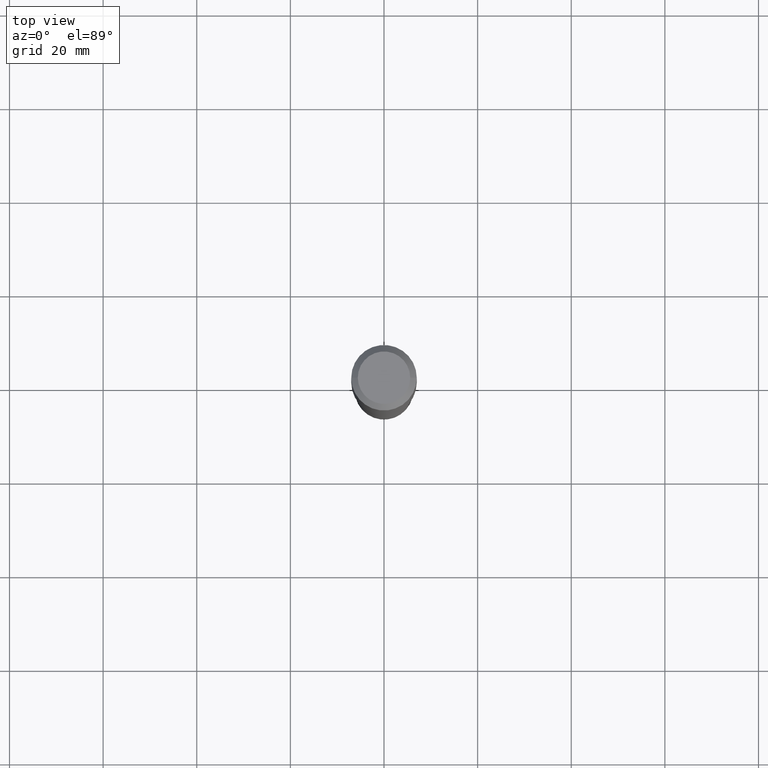
[diagram: clean part render]
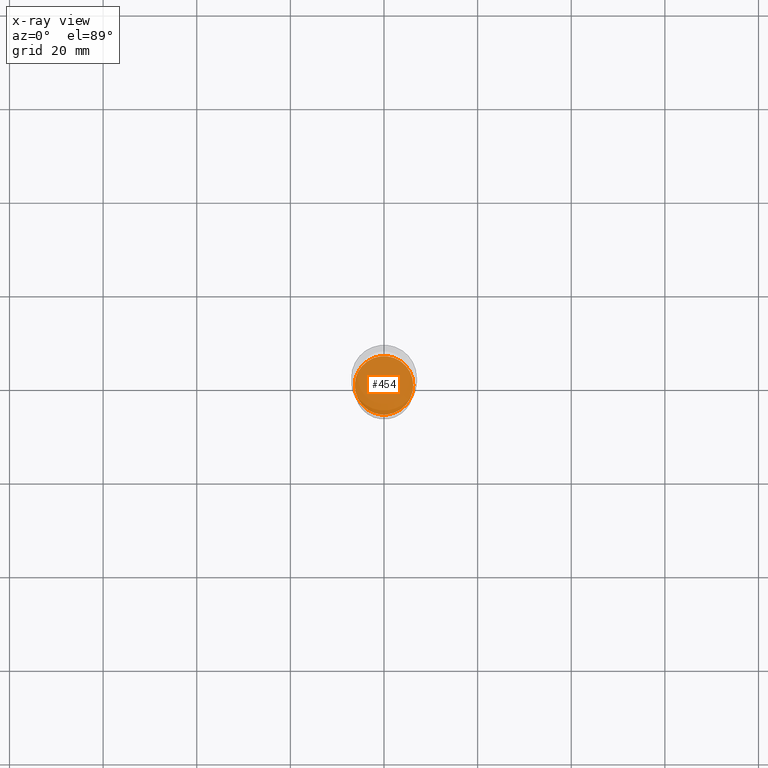
[diagram: x-ray — body ghosted, one internal face saturated and labeled with its STEP entity id]
A machine part, top view, then the same camera in x-ray: the body is ghosted and one INTERNAL B-rep face — a face not visible from any outside direction — is saturated and labeled: STEP entity #454.
In plain terms, the highlighted planar face has unit normal (0, -0, -1).
Its self-contained STEP definition (entity closure, byte-faithful):
#4 = ORIENTED_EDGE ( 'NONE', *, *, #41, .T. ) ;
#26 = CARTESIAN_POINT ( 'NONE',  ( 0.2460499999999999909, -1.484752439343046924E-14, -3.760399999999999743 ) ) ;
#41 = EDGE_CURVE ( 'NONE', #321, #481, #506, .T. ) ;
#103 = DIRECTION ( 'NONE',  ( -2.445468806185136597E-29, 3.491481338843145583E-15, 1.000000000000000000 ) ) ;
#125 = CARTESIAN_POINT ( 'NONE',  ( -0.2460499999999999909, -1.546960067303336290E-14, -3.760399999999999743 ) ) ;
#129 = DIRECTION ( 'NONE',  ( -2.445468806185136597E-29, 3.491481338843145583E-15, 1.000000000000000000 ) ) ;
#139 = AXIS2_PLACEMENT_3D ( 'NONE', #287, #279, #250 ) ;
#150 = EDGE_CURVE ( 'NONE', #481, #321, #371, .T. ) ;
#246 = PLANE ( 'NONE',  #139 ) ;
#250 = DIRECTION ( 'NONE',  ( -1.000000000000000000, 6.982962677686265922E-15, -4.876176775795935793E-29 ) ) ;
#272 = EDGE_LOOP ( 'NONE', ( #4, #510 ) ) ;
#279 = DIRECTION ( 'NONE',  ( 2.438088387897960049E-29, -3.491481338843145188E-15, -1.000000000000000000 ) ) ;
#286 = DIRECTION ( 'NONE',  ( 1.000000000000000000, -6.982962677686266711E-15, 0.000000000000000000 ) ) ;
#287 = CARTESIAN_POINT ( 'NONE',  ( 9.195940898778586679E-29, -1.312936642658576311E-14, -3.760399999999999743 ) ) ;
#321 = VERTEX_POINT ( 'NONE', #26 ) ;
#341 = AXIS2_PLACEMENT_3D ( 'NONE', #380, #103, #493 ) ;
#371 = CIRCLE ( 'NONE', #341, 0.2460499999999999909 ) ;
#380 = CARTESIAN_POINT ( 'NONE',  ( 9.195940898778586679E-29, -1.312936642658576311E-14, -3.760399999999999743 ) ) ;
#434 = FACE_OUTER_BOUND ( 'NONE', #272, .T. ) ;
#444 = AXIS2_PLACEMENT_3D ( 'NONE', #478, #129, #286 ) ;
#454 = ADVANCED_FACE ( 'NONE', ( #434 ), #246, .F. ) ;
#478 = CARTESIAN_POINT ( 'NONE',  ( 9.195940898778586679E-29, -1.312936642658576311E-14, -3.760399999999999743 ) ) ;
#481 = VERTEX_POINT ( 'NONE', #125 ) ;
#493 = DIRECTION ( 'NONE',  ( 1.000000000000000000, -6.982962677686266711E-15, 0.000000000000000000 ) ) ;
#506 = CIRCLE ( 'NONE', #444, 0.2460499999999999909 ) ;
#510 = ORIENTED_EDGE ( 'NONE', *, *, #150, .T. ) ;